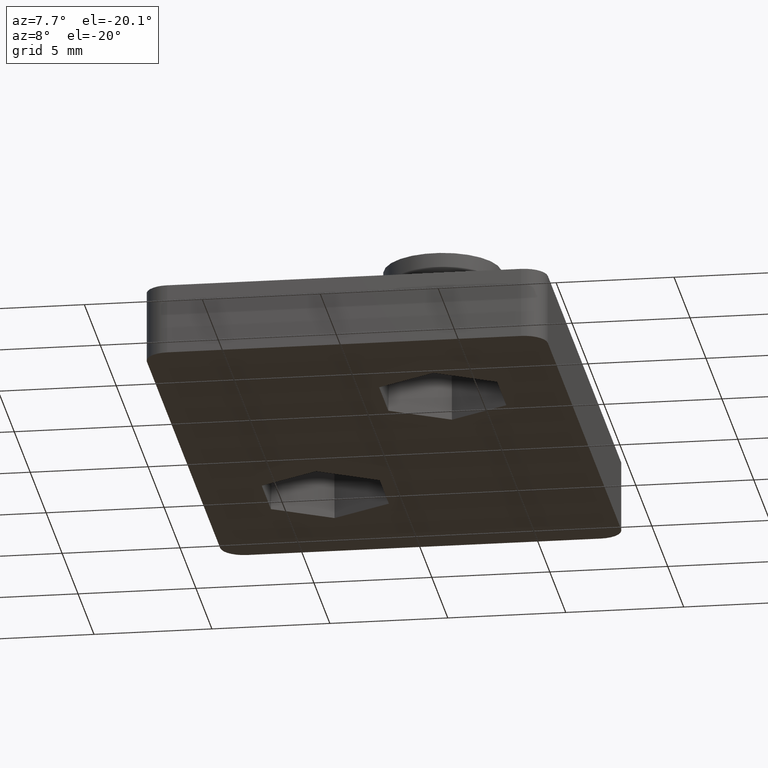
[diagram: clean part render]
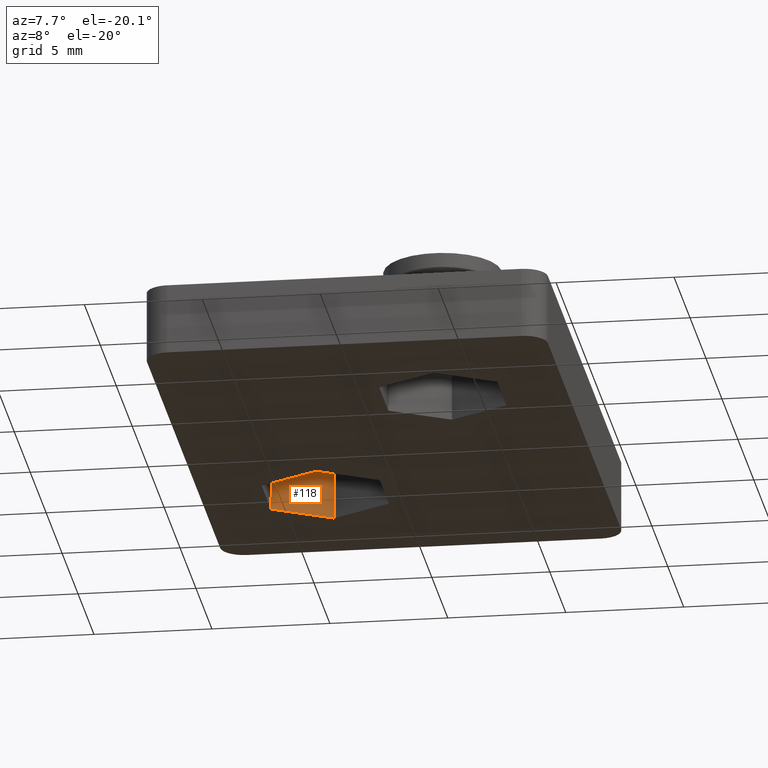
[diagram: same view with one face highlighted and labeled with its STEP entity id]
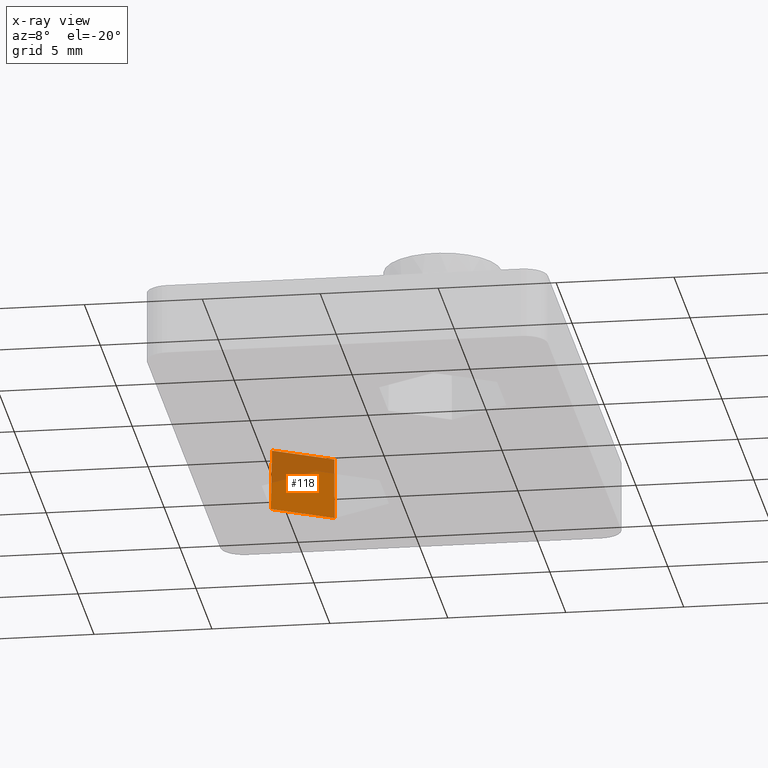
[diagram: x-ray of the same camera — body ghosted, the highlighted face saturated]
A machine part, auxiliary view. The second image highlights one B-rep face of the part: STEP entity #118.
The next image is the same camera in x-ray: the body ghosted, the highlighted face saturated — about 35% of this face is hidden behind the body in this view.
In plain terms, the highlighted planar face has unit normal (-0.4999, 0.8659, 0.0175).
Its self-contained STEP definition (entity closure, byte-faithful):
#118 = ADVANCED_FACE( '', ( #232 ), #233, .F. );
#232 = FACE_OUTER_BOUND( '', #365, .T. );
#233 = PLANE( '', #366 );
#365 = EDGE_LOOP( '', ( #766, #767, #768, #769 ) );
#366 = AXIS2_PLACEMENT_3D( '', #770, #771, #772 );
#766 = ORIENTED_EDGE( '', *, *, #937, .F. );
#767 = ORIENTED_EDGE( '', *, *, #1018, .F. );
#768 = ORIENTED_EDGE( '', *, *, #1012, .T. );
#769 = ORIENTED_EDGE( '', *, *, #1016, .T. );
#770 = CARTESIAN_POINT( '', ( -5.75000000000000, 7.07254079757291, -4.33053919918789E-016 ) );
#771 = DIRECTION( '', ( -0.499923847578196, 0.865893503920754, 0.0174524064372835 ) );
#772 = DIRECTION( '', ( -0.866025403784438, -0.500000000000000, 2.96370307086826E-017 ) );
#937 = EDGE_CURVE( '', #1134, #1125, #1136, .F. );
#1012 = EDGE_CURVE( '', #1255, #1253, #1256, .F. );
#1016 = EDGE_CURVE( '', #1253, #1125, #1262, .T. );
#1018 = EDGE_CURVE( '', #1255, #1134, #1264, .T. );
#1125 = VERTEX_POINT( '', #1414 );
#1134 = VERTEX_POINT( '', #1427 );
#1136 = LINE( '', #1430, #1431 );
#1253 = VERTEX_POINT( '', #1616 );
#1255 = VERTEX_POINT( '', #1619 );
#1256 = LINE( '', #1620, #1621 );
#1262 = LINE( '', #1630, #1631 );
#1264 = LINE( '', #1634, #1635 );
#1414 = CARTESIAN_POINT( '', ( -5.75000000000000, 7.07254079757292, -4.33053919918789E-016 ) );
#1427 = CARTESIAN_POINT( '', ( -3.25000000000000, 8.51591647054698, -5.21432270922623E-016 ) );
#1430 = CARTESIAN_POINT( '', ( -5.75000000000000, 7.07254079757291, -4.33053919918789E-016 ) );
#1431 = VECTOR( '', #1731, 1000.00000000000 );
#1616 = CARTESIAN_POINT( '', ( -5.70461683118663, 7.04633881284184, 2.60000000000000 ) );
#1619 = CARTESIAN_POINT( '', ( -3.25000000000000, 8.46351250108483, 2.60000000000000 ) );
#1620 = CARTESIAN_POINT( '', ( -5.72730841559332, 7.03323782047630, 2.60000000000000 ) );
#1621 = VECTOR( '', #1816, 1000.00000000000 );
#1630 = CARTESIAN_POINT( '', ( -5.74923861107680, 7.07210120947315, 0.0436199421964263 ) );
#1631 = VECTOR( '', #1820, 1000.00000000000 );
#1634 = CARTESIAN_POINT( '', ( -3.25000000000000, 8.51533035308062, 0.0290799614642840 ) );
#1635 = VECTOR( '', #1822, 1000.00000000000 );
#1731 = DIRECTION( '', ( 0.866025403784438, 0.500000000000000, -3.06151588455595E-017 ) );
#1816 = DIRECTION( '', ( 0.866025403784438, 0.500000000000000, -3.06151588455595E-017 ) );
#1820 = DIRECTION( '', ( -0.0174515205435363, 0.0100756400835789, -0.999796942337605 ) );
#1822 = DIRECTION( '', ( -4.00673166131684E-018, 0.0201512801671579, -0.999796942337605 ) );